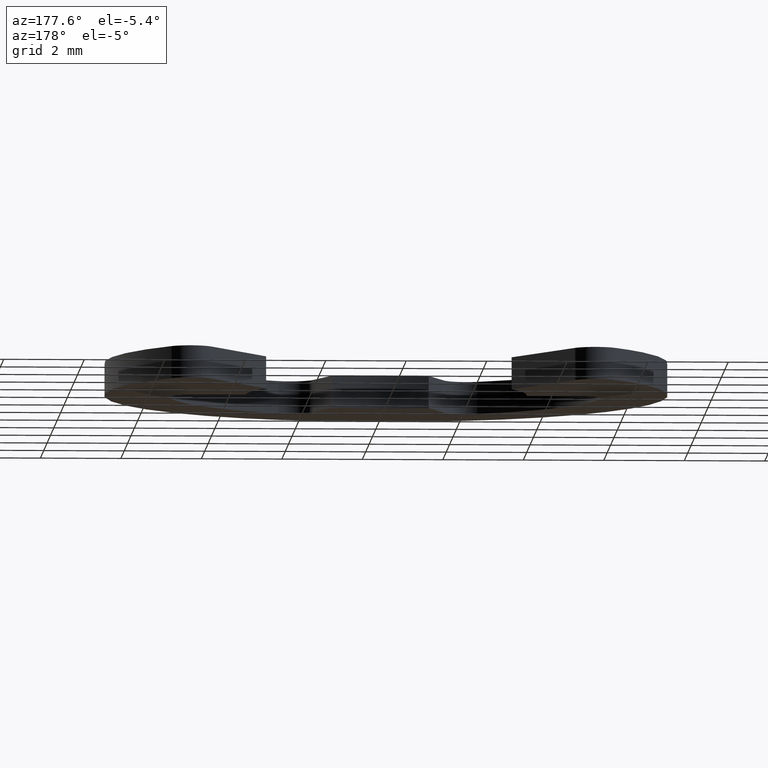
[diagram: clean part render]
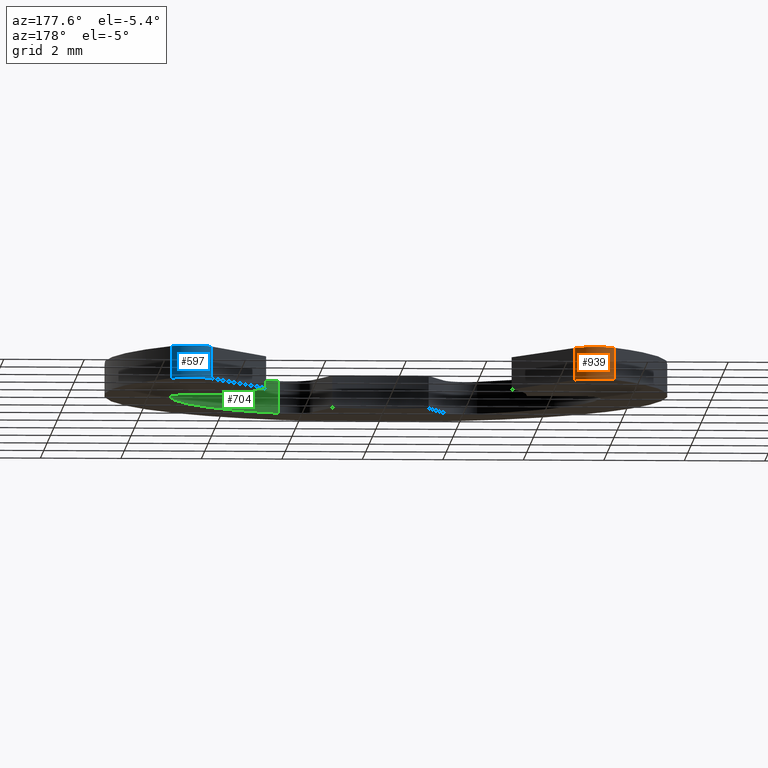
[diagram: same view with three faces highlighted in distinct colors, each labeled with its STEP entity id]
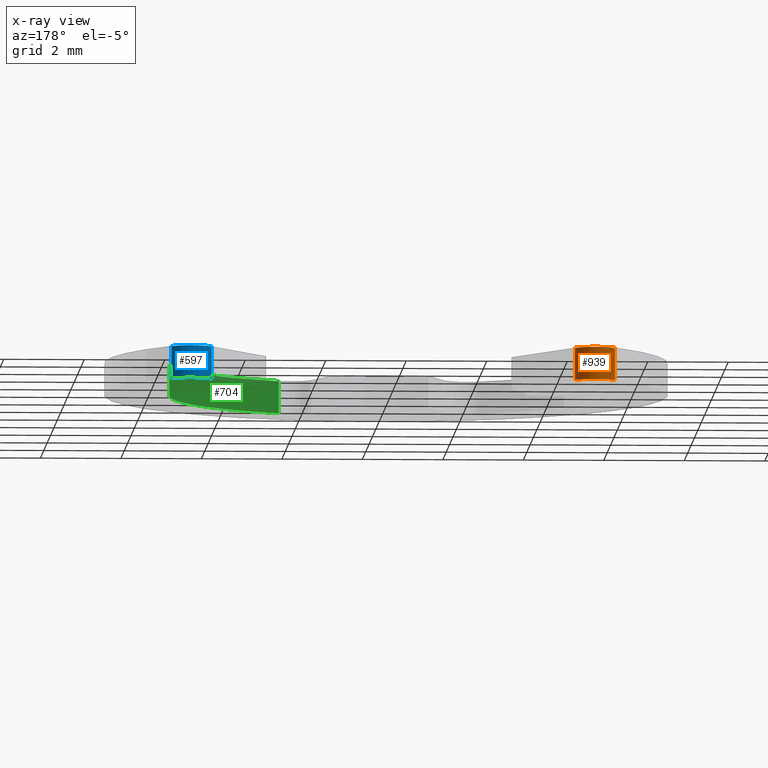
[diagram: x-ray of the same camera — body ghosted, the three highlighted faces saturated]
A machine part, auxiliary view with three faces highlighted in distinct colors.
The next image is the same camera in x-ray (body ghosted, the three faces saturated) — at least one of them is partly hidden behind the body in this view.
Their STEP definitions:

[orange] entity #939 — the highlighted face is a freeform B-spline surface patch.
#49=CARTESIAN_POINT('',(-5.505520051458170,4.323106401997531,0.0));
#50=VERTEX_POINT('',#49);
#51=CARTESIAN_POINT('',(-4.514004000000000,4.252556000000000,0.0));
#52=VERTEX_POINT('',#51);
#53=CARTESIAN_POINT('',(-5.505520051458169,4.323106401997530,0.0));
#54=CARTESIAN_POINT('',(-5.308784917364946,4.573650599816963,0.0));
#55=CARTESIAN_POINT('',(-4.991033556247954,4.551041297396017,0.0));
#56=CARTESIAN_POINT('',(-4.673282195130962,4.528431994975072,0.0));
#57=CARTESIAN_POINT('',(-4.514004000000000,4.252556000000000,0.0));
#65=(BOUNDED_CURVE()B_SPLINE_CURVE(2,(#53,#54,#55,#56,#57),.UNSPECIFIED.,.F.,.U.)B_SPLINE_CURVE_WITH_KNOTS((3,2,3),(0.0,0.500000000000000,1.0),.UNSPECIFIED.)CURVE()GEOMETRIC_REPRESENTATION_ITEM()RATIONAL_B_SPLINE_CURVE((1.0,0.883234793916496,1.0,0.883234793916496,1.0))REPRESENTATION_ITEM(''));
#66=EDGE_CURVE('',#50,#52,#65,.T.);
#295=CARTESIAN_POINT('',(-5.505520051458170,4.323106401997531,0.799988000000140));
#296=VERTEX_POINT('',#295);
#297=CARTESIAN_POINT('',(-4.514004000000000,4.252556000000000,0.799988000000140));
#298=VERTEX_POINT('',#297);
#299=CARTESIAN_POINT('',(-5.505520051458169,4.323106401997530,0.799988000000140));
#300=CARTESIAN_POINT('',(-5.308784917364946,4.573650599816963,0.799988000000140));
#301=CARTESIAN_POINT('',(-4.991033556247954,4.551041297396017,0.799988000000140));
#302=CARTESIAN_POINT('',(-4.673282195130962,4.528431994975072,0.799988000000140));
#303=CARTESIAN_POINT('',(-4.514004000000000,4.252556000000000,0.799988000000140));
#311=(BOUNDED_CURVE()B_SPLINE_CURVE(2,(#299,#300,#301,#302,#303),.UNSPECIFIED.,.F.,.U.)B_SPLINE_CURVE_WITH_KNOTS((3,2,3),(0.0,0.500000000000000,1.0),.UNSPECIFIED.)CURVE()GEOMETRIC_REPRESENTATION_ITEM()RATIONAL_B_SPLINE_CURVE((1.0,0.883234793916496,1.0,0.883234793916496,1.0))REPRESENTATION_ITEM(''));
#312=EDGE_CURVE('',#296,#298,#311,.T.);
#565=CARTESIAN_POINT('',(-5.505520051458170,4.323106401997531,0.799988000000140));
#566=CARTESIAN_POINT('',(-5.505520051458170,4.323106401997531,0.0));
#567=QUASI_UNIFORM_CURVE('',1,(#565,#566),.UNSPECIFIED.,.F.,.U.);
#568=EDGE_CURVE('',#296,#50,#567,.T.);
#909=CARTESIAN_POINT('',(-4.514004000000000,4.252556000000000,0.799988000000140));
#910=CARTESIAN_POINT('',(-4.514004000000000,4.252556000000000,0.0));
#911=QUASI_UNIFORM_CURVE('',1,(#909,#910),.UNSPECIFIED.,.F.,.U.);
#912=EDGE_CURVE('',#298,#52,#911,.T.);
#919=CARTESIAN_POINT('',(-4.505629537928138,4.237559393991248,0.819987700000144));
#920=CARTESIAN_POINT('',(-4.505629537928138,4.237559393991248,-0.020499692500004));
#921=CARTESIAN_POINT('',(-4.979957460715045,5.116280312143820,0.819987700000144));
#922=CARTESIAN_POINT('',(-4.979957460715045,5.116280312143820,-0.020499692500004));
#923=CARTESIAN_POINT('',(-5.533138509008890,4.284939131795604,0.819987700000144));
#924=CARTESIAN_POINT('',(-5.533138509008890,4.284939131795604,-0.020499692500004));
#932=(BOUNDED_SURFACE()B_SPLINE_SURFACE(1,2,((#919,#921,#923),(#920,#922,#924)),.UNSPECIFIED.,.F.,.F.,.U.)GEOMETRIC_REPRESENTATION_ITEM()QUASI_UNIFORM_SURFACE()RATIONAL_B_SPLINE_SURFACE(((1.0,0.515038074910054,1.0),(1.0,0.515038074910054,1.0)))REPRESENTATION_ITEM('')SURFACE());
#933=ORIENTED_EDGE('',*,*,#66,.F.);
#934=ORIENTED_EDGE('',*,*,#568,.F.);
#935=ORIENTED_EDGE('',*,*,#312,.T.);
#936=ORIENTED_EDGE('',*,*,#912,.T.);
#937=EDGE_LOOP('',(#933,#934,#935,#936));
#938=FACE_OUTER_BOUND('',#937,.T.);
#939=ADVANCED_FACE('',(#938),#932,.T.);

[blue] entity #597 — the highlighted face is a freeform B-spline surface patch.
#246=CARTESIAN_POINT('',(4.514004202788870,4.252553770864495,0.0));
#247=VERTEX_POINT('',#246);
#253=CARTESIAN_POINT('',(5.505519803872589,4.323106717300275,0.0));
#254=VERTEX_POINT('',#253);
#255=CARTESIAN_POINT('',(4.514004202788867,4.252553770864496,0.0));
#256=CARTESIAN_POINT('',(4.673281809844327,4.528429733622624,0.0));
#257=CARTESIAN_POINT('',(4.991032795902336,4.551039771132551,0.0));
#258=CARTESIAN_POINT('',(5.308783781960344,4.573649808642479,0.0));
#259=CARTESIAN_POINT('',(5.505519803872589,4.323106717300275,0.0));
#267=(BOUNDED_CURVE()B_SPLINE_CURVE(2,(#255,#256,#257,#258,#259),.UNSPECIFIED.,.F.,.U.)B_SPLINE_CURVE_WITH_KNOTS((3,2,3),(0.0,0.500000000000000,1.0),.UNSPECIFIED.)CURVE()GEOMETRIC_REPRESENTATION_ITEM()RATIONAL_B_SPLINE_CURVE((1.0,0.883234990200231,1.0,0.883234990200231,1.0))REPRESENTATION_ITEM(''));
#268=EDGE_CURVE('',#247,#254,#267,.T.);
#314=CARTESIAN_POINT('',(5.505519803872589,4.323106717300275,0.799988000000140));
#315=VERTEX_POINT('',#314);
#333=CARTESIAN_POINT('',(4.514004202788870,4.252553770864495,0.799988000000140));
#334=VERTEX_POINT('',#333);
#335=CARTESIAN_POINT('',(4.514004202788867,4.252553770864496,0.799988000000140));
#336=CARTESIAN_POINT('',(4.673281809844327,4.528429733622624,0.799988000000140));
#337=CARTESIAN_POINT('',(4.991032795902336,4.551039771132551,0.799988000000140));
#338=CARTESIAN_POINT('',(5.308783781960344,4.573649808642479,0.799988000000140));
#339=CARTESIAN_POINT('',(5.505519803872589,4.323106717300275,0.799988000000140));
#347=(BOUNDED_CURVE()B_SPLINE_CURVE(2,(#335,#336,#337,#338,#339),.UNSPECIFIED.,.F.,.U.)B_SPLINE_CURVE_WITH_KNOTS((3,2,3),(0.0,0.500000000000000,1.0),.UNSPECIFIED.)CURVE()GEOMETRIC_REPRESENTATION_ITEM()RATIONAL_B_SPLINE_CURVE((1.0,0.883234990200231,1.0,0.883234990200231,1.0))REPRESENTATION_ITEM(''));
#348=EDGE_CURVE('',#334,#315,#347,.T.);
#559=CARTESIAN_POINT('',(5.505519803872589,4.323106717300275,0.799988000000140));
#560=CARTESIAN_POINT('',(5.505519803872589,4.323106717300275,0.0));
#561=QUASI_UNIFORM_CURVE('',1,(#559,#560),.UNSPECIFIED.,.F.,.U.);
#562=EDGE_CURVE('',#315,#254,#561,.T.);
#573=CARTESIAN_POINT('',(5.515933645832221,4.309445956523111,0.819987700000144));
#574=CARTESIAN_POINT('',(5.515933645832221,4.309445956523111,-0.020499692500004));
#575=CARTESIAN_POINT('',(4.921964020895551,5.112152325618832,0.819987700000144));
#576=CARTESIAN_POINT('',(4.921964020895551,5.112152325618832,-0.020499692500004));
#577=CARTESIAN_POINT('',(4.492068212596321,4.210860461492125,0.819987700000144));
#578=CARTESIAN_POINT('',(4.492068212596321,4.210860461492125,-0.020499692500004));
#586=(BOUNDED_SURFACE()B_SPLINE_SURFACE(1,2,((#573,#575,#577),(#574,#576,#578)),.UNSPECIFIED.,.F.,.F.,.U.)GEOMETRIC_REPRESENTATION_ITEM()QUASI_UNIFORM_SURFACE()RATIONAL_B_SPLINE_SURFACE(((1.0,0.515038074910054,1.0),(1.0,0.515038074910054,1.0)))REPRESENTATION_ITEM('')SURFACE());
#587=ORIENTED_EDGE('',*,*,#268,.F.);
#588=CARTESIAN_POINT('',(4.514004202788870,4.252553770864495,0.799988000000140));
#589=CARTESIAN_POINT('',(4.514004202788870,4.252553770864495,0.0));
#590=QUASI_UNIFORM_CURVE('',1,(#588,#589),.UNSPECIFIED.,.F.,.U.);
#591=EDGE_CURVE('',#334,#247,#590,.T.);
#592=ORIENTED_EDGE('',*,*,#591,.F.);
#593=ORIENTED_EDGE('',*,*,#348,.T.);
#594=ORIENTED_EDGE('',*,*,#562,.T.);
#595=EDGE_LOOP('',(#587,#592,#593,#594));
#596=FACE_OUTER_BOUND('',#595,.T.);
#597=ADVANCED_FACE('',(#596),#586,.T.);

[green] entity #704 — the highlighted face is a freeform B-spline surface patch.
#175=CARTESIAN_POINT('',(2.466713181127335,-4.803678390780620,0.0));
#176=VERTEX_POINT('',#175);
#192=CARTESIAN_POINT('',(5.357645964854310,-0.674999636050790,0.0));
#193=VERTEX_POINT('',#192);
#194=CARTESIAN_POINT('',(5.357645964854310,-0.674999636050790,0.0));
#195=CARTESIAN_POINT('',(5.001469452492112,-3.502068208566773,0.0));
#196=CARTESIAN_POINT('',(2.466713181127333,-4.803678390780618,0.0));
#204=(BOUNDED_CURVE()B_SPLINE_CURVE(2,(#194,#195,#196),.UNSPECIFIED.,.F.,.U.)CURVE()GEOMETRIC_REPRESENTATION_ITEM()QUASI_UNIFORM_CURVE()RATIONAL_B_SPLINE_CURVE((1.0,0.884424151352078,1.0))REPRESENTATION_ITEM(''));
#205=EDGE_CURVE('',#193,#176,#204,.T.);
#379=CARTESIAN_POINT('',(5.357645964854310,-0.674999636050790,0.799988000000140));
#380=VERTEX_POINT('',#379);
#396=CARTESIAN_POINT('',(2.466713181127335,-4.803678390780620,0.799988000000140));
#397=VERTEX_POINT('',#396);
#398=CARTESIAN_POINT('',(5.357645964854310,-0.674999636050790,0.799988000000140));
#399=CARTESIAN_POINT('',(5.001469452492112,-3.502068208566773,0.799988000000140));
#400=CARTESIAN_POINT('',(2.466713181127333,-4.803678390780618,0.799988000000140));
#408=(BOUNDED_CURVE()B_SPLINE_CURVE(2,(#398,#399,#400),.UNSPECIFIED.,.F.,.U.)CURVE()GEOMETRIC_REPRESENTATION_ITEM()QUASI_UNIFORM_CURVE()RATIONAL_B_SPLINE_CURVE((1.0,0.884424151352078,1.0))REPRESENTATION_ITEM(''));
#409=EDGE_CURVE('',#380,#397,#408,.T.);
#670=CARTESIAN_POINT('',(5.357645964854310,-0.674999636050790,0.799988000000140));
#671=CARTESIAN_POINT('',(5.357645964854310,-0.674999636050790,0.0));
#672=QUASI_UNIFORM_CURVE('',1,(#670,#671),.UNSPECIFIED.,.F.,.U.);
#673=EDGE_CURVE('',#380,#193,#672,.T.);
#680=CARTESIAN_POINT('',(2.340122259204579,-4.866603313603363,0.819987700000144));
#681=CARTESIAN_POINT('',(2.340122259204579,-4.866603313603363,-0.020499692500004));
#682=CARTESIAN_POINT('',(5.138662298081947,-3.520916102988454,0.819987700000144));
#683=CARTESIAN_POINT('',(5.138662298081947,-3.520916102988454,-0.020499692500004));
#684=CARTESIAN_POINT('',(5.383226425182964,-0.425291964668755,0.819987700000144));
#685=CARTESIAN_POINT('',(5.383226425182964,-0.425291964668755,-0.020499692500004));
#693=(BOUNDED_SURFACE()B_SPLINE_SURFACE(1,2,((#680,#682,#684),(#681,#683,#685)),.UNSPECIFIED.,.F.,.F.,.U.)B_SPLINE_SURFACE_WITH_KNOTS((2,2),(3,3),(0.0,1.0),(0.0,5.767716693920538),.UNSPECIFIED.)GEOMETRIC_REPRESENTATION_ITEM()RATIONAL_B_SPLINE_SURFACE(((1.0,0.866487925245807,0.999078150609594),(1.0,0.866487925245807,0.999078150609594)))REPRESENTATION_ITEM('')SURFACE());
#694=ORIENTED_EDGE('',*,*,#205,.T.);
#695=CARTESIAN_POINT('',(2.466713181127335,-4.803678390780620,0.799988000000140));
#696=CARTESIAN_POINT('',(2.466713181127335,-4.803678390780620,0.0));
#697=QUASI_UNIFORM_CURVE('',1,(#695,#696),.UNSPECIFIED.,.F.,.U.);
#698=EDGE_CURVE('',#397,#176,#697,.T.);
#699=ORIENTED_EDGE('',*,*,#698,.F.);
#700=ORIENTED_EDGE('',*,*,#409,.F.);
#701=ORIENTED_EDGE('',*,*,#673,.T.);
#702=EDGE_LOOP('',(#694,#699,#700,#701));
#703=FACE_OUTER_BOUND('',#702,.T.);
#704=ADVANCED_FACE('',(#703),#693,.F.);